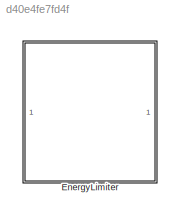
MODEL slx_d40e4fe7fd4f
KIND library
CONFIG AbsTol = auto
CONFIG EnableMultiTasking = off
CONFIG FixedStep = auto
CONFIG MaxStep = auto
CONFIG MinStep = auto
CONFIG RelTol = 1e-3
CONFIG SampleTimeConstraint = Unconstrained
CONFIG SolverName = VariableStepAuto
CONFIG StartTime = 0.0
CONFIG StopTime = 10.0
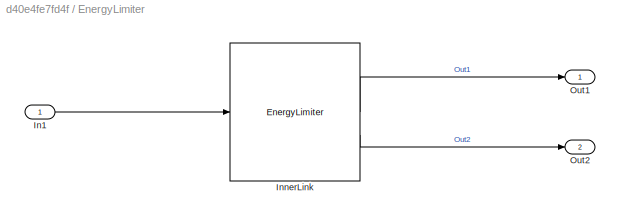
BLOCK [SubSystem] EnergyLimiter
BLOCK [Inport] EnergyLimiter/In1
BLOCK [Reference] EnergyLimiter/InnerLink  REF=EnergyLimiterBtc/EnergyLimiter
  SourceBlock = EnergyLimiterBtc/EnergyLimiter
  SourceProductName = Bose Blocklib
  SourceType = Blocklib EnergyLimiter
BLOCK [Outport] EnergyLimiter/Out1
BLOCK [Outport] EnergyLimiter/Out2
  Port = 2
LINE EnergyLimiter/In1:1 -> EnergyLimiter/InnerLink:1
LINE EnergyLimiter/InnerLink:1 -> EnergyLimiter/Out1:1
LINE EnergyLimiter/InnerLink:2 -> EnergyLimiter/Out2:1
